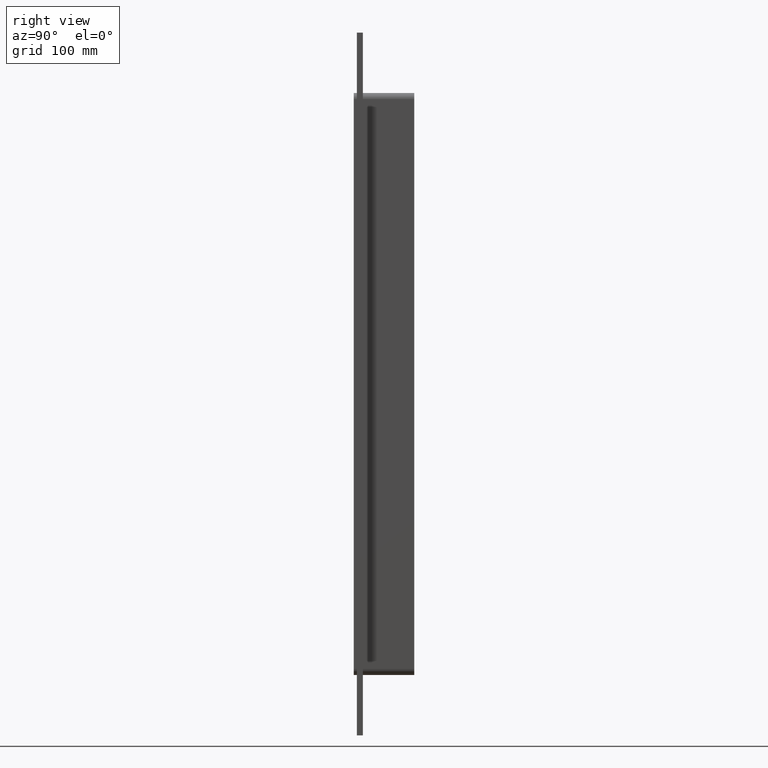
[diagram: clean part render]
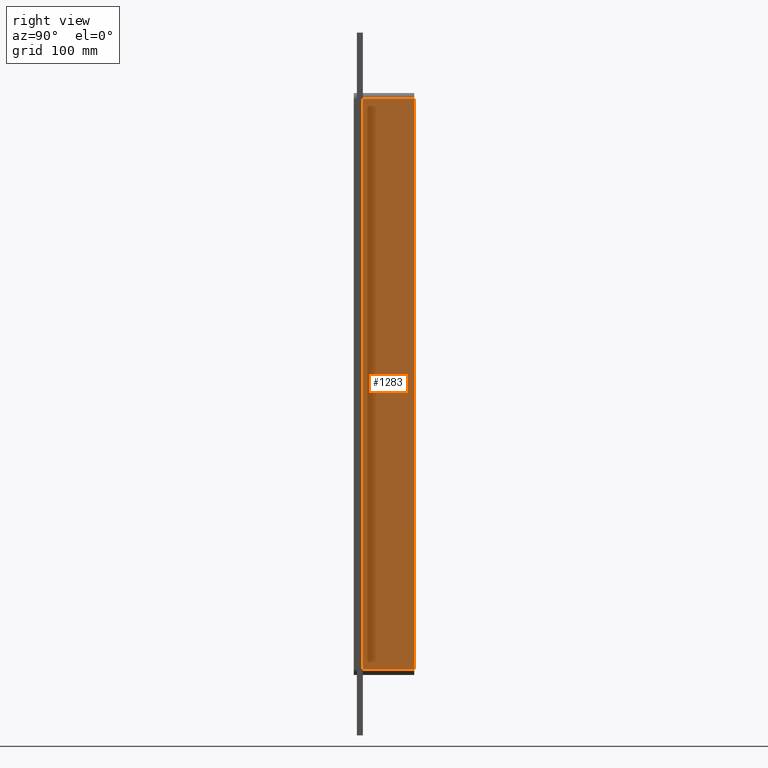
[diagram: same view with one face highlighted and labeled with its STEP entity id]
A machine part, right view. The second image highlights one B-rep face of the part: STEP entity #1283.
In plain terms, the highlighted planar face has unit normal (1, 0, 0).
Its self-contained STEP definition (entity closure, byte-faithful):
#857=CARTESIAN_POINT('',(36.250000000000007,6.000000000000001,-283.0));
#858=VERTEX_POINT('',#857);
#866=CARTESIAN_POINT('',(36.250000000000007,6.000000000000001,283.00000000000006));
#867=VERTEX_POINT('',#866);
#868=CARTESIAN_POINT('',(36.250000000000007,6.000000000000001,283.0));
#869=DIRECTION('',(0.0,0.0,-1.0));
#870=VECTOR('',#869,566.0);
#871=LINE('',#868,#870);
#872=EDGE_CURVE('',#867,#858,#871,.T.);
#1210=CARTESIAN_POINT('',(36.250000000000007,57.0,283.00000000000006));
#1211=VERTEX_POINT('',#1210);
#1212=CARTESIAN_POINT('',(36.250000000000007,6.000000000000001,283.00000000000006));
#1213=DIRECTION('',(0.0,1.0,0.0));
#1214=VECTOR('',#1213,51.0);
#1215=LINE('',#1212,#1214);
#1216=EDGE_CURVE('',#867,#1211,#1215,.T.);
#1260=CARTESIAN_POINT('',(36.250000000000007,0.0,289.00000000000006));
#1261=DIRECTION('',(1.0,0.0,0.0));
#1262=DIRECTION('',(0.0,0.0,-1.0));
#1263=AXIS2_PLACEMENT_3D('',#1260,#1261,#1262);
#1264=PLANE('',#1263);
#1265=ORIENTED_EDGE('',*,*,#872,.T.);
#1266=CARTESIAN_POINT('',(36.250000000000007,57.0,-283.0));
#1267=VERTEX_POINT('',#1266);
#1268=CARTESIAN_POINT('',(36.250000000000007,57.0,-283.0));
#1269=DIRECTION('',(0.0,-1.0,0.0));
#1270=VECTOR('',#1269,51.0);
#1271=LINE('',#1268,#1270);
#1272=EDGE_CURVE('',#1267,#858,#1271,.T.);
#1273=ORIENTED_EDGE('',*,*,#1272,.F.);
#1274=CARTESIAN_POINT('',(36.250000000000007,57.0,283.00000000000006));
#1275=DIRECTION('',(0.0,0.0,-1.0));
#1276=VECTOR('',#1275,566.0);
#1277=LINE('',#1274,#1276);
#1278=EDGE_CURVE('',#1211,#1267,#1277,.T.);
#1279=ORIENTED_EDGE('',*,*,#1278,.F.);
#1280=ORIENTED_EDGE('',*,*,#1216,.F.);
#1281=EDGE_LOOP('',(#1265,#1273,#1279,#1280));
#1282=FACE_OUTER_BOUND('',#1281,.T.);
#1283=ADVANCED_FACE('',(#1282),#1264,.T.);